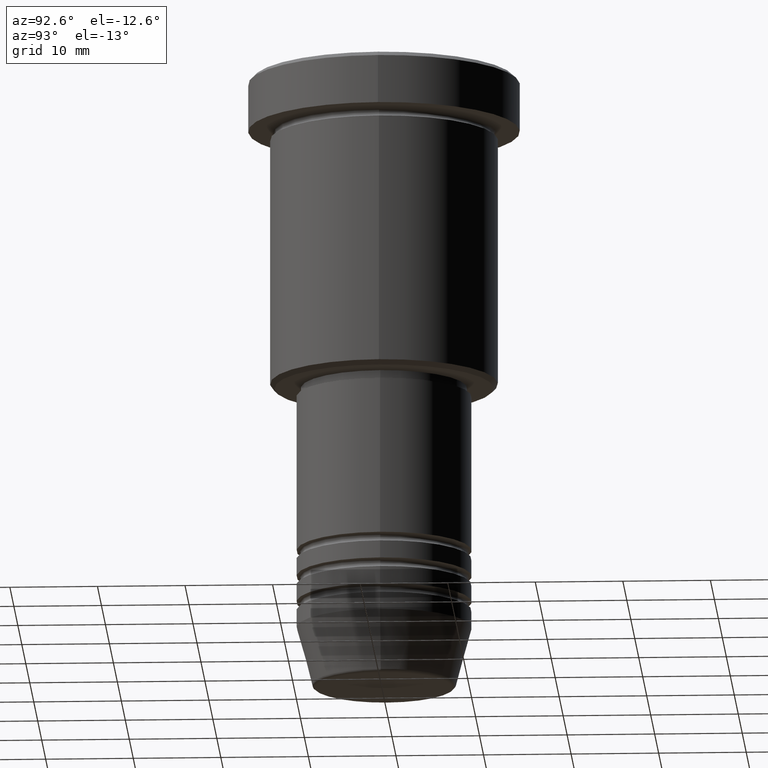
[diagram: clean part render]
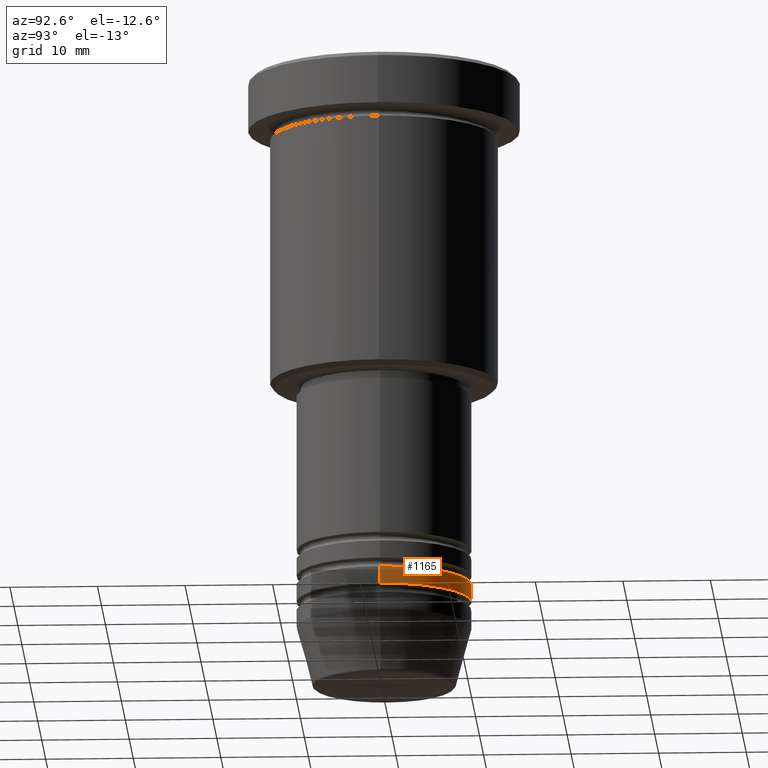
[diagram: same view with one face highlighted and labeled with its STEP entity id]
A machine part, auxiliary view. The second image highlights one B-rep face of the part: STEP entity #1165.
In plain terms, the highlighted cylindrical surface (partial cylindrical patch) has radius 10 mm, axis along (-0, -0, 1).
Its self-contained STEP definition (entity closure, byte-faithful):
#18 = VERTEX_POINT ( 'NONE', #954 ) ;
#190 = VERTEX_POINT ( 'NONE', #897 ) ;
#193 = EDGE_CURVE ( 'NONE', #18, #1034, #901, .T. ) ;
#199 = DIRECTION ( 'NONE',  ( 1.000000000000000000, 0.000000000000000000, 0.000000000000000000 ) ) ;
#235 = ORIENTED_EDGE ( 'NONE', *, *, #1092, .F. ) ;
#243 = DIRECTION ( 'NONE',  ( 1.000000000000000000, 0.000000000000000000, 0.000000000000000000 ) ) ;
#294 = CARTESIAN_POINT ( 'NONE',  ( -10.00000000000000000, 1.224646799147353256E-15, -60.99999999999998579 ) ) ;
#368 = VECTOR ( 'NONE', #877, 1000.000000000000000 ) ;
#404 = EDGE_CURVE ( 'NONE', #1019, #190, #454, .T. ) ;
#408 = CIRCLE ( 'NONE', #1177, 10.00000000000000000 ) ;
#414 = FACE_OUTER_BOUND ( 'NONE', #592, .T. ) ;
#423 = DIRECTION ( 'NONE',  ( 1.000000000000000000, 0.000000000000000000, 0.000000000000000000 ) ) ;
#454 = LINE ( 'NONE', #743, #560 ) ;
#482 = CIRCLE ( 'NONE', #1158, 10.00000000000000000 ) ;
#515 = CARTESIAN_POINT ( 'NONE',  ( 10.00000000000000000, 0.000000000000000000, 0.000000000000000000 ) ) ;
#560 = VECTOR ( 'NONE', #907, 1000.000000000000000 ) ;
#579 = AXIS2_PLACEMENT_3D ( 'NONE', #875, #785, #243 ) ;
#592 = EDGE_LOOP ( 'NONE', ( #1124, #878, #235, #1086 ) ) ;
#603 = CYLINDRICAL_SURFACE ( 'NONE', #579, 10.00000000000000000 ) ;
#711 = CARTESIAN_POINT ( 'NONE',  ( 0.000000000000000000, 0.000000000000000000, -58.99999999999998579 ) ) ;
#743 = CARTESIAN_POINT ( 'NONE',  ( -10.00000000000000000, 1.224646799147353256E-15, 0.000000000000000000 ) ) ;
#756 = CARTESIAN_POINT ( 'NONE',  ( 10.00000000000000000, 0.000000000000000000, -58.99999999999998579 ) ) ;
#785 = DIRECTION ( 'NONE',  ( -0.000000000000000000, -0.000000000000000000, 1.000000000000000000 ) ) ;
#860 = EDGE_CURVE ( 'NONE', #18, #1019, #482, .T. ) ;
#875 = CARTESIAN_POINT ( 'NONE',  ( 0.000000000000000000, 0.000000000000000000, 0.000000000000000000 ) ) ;
#877 = DIRECTION ( 'NONE',  ( -0.000000000000000000, -0.000000000000000000, 1.000000000000000000 ) ) ;
#878 = ORIENTED_EDGE ( 'NONE', *, *, #404, .T. ) ;
#897 = CARTESIAN_POINT ( 'NONE',  ( -10.00000000000000000, 1.224646799147353256E-15, -58.99999999999998579 ) ) ;
#901 = LINE ( 'NONE', #515, #368 ) ;
#907 = DIRECTION ( 'NONE',  ( -0.000000000000000000, -0.000000000000000000, 1.000000000000000000 ) ) ;
#954 = CARTESIAN_POINT ( 'NONE',  ( 10.00000000000000000, 0.000000000000000000, -60.99999999999998579 ) ) ;
#1019 = VERTEX_POINT ( 'NONE', #294 ) ;
#1020 = DIRECTION ( 'NONE',  ( -0.000000000000000000, -0.000000000000000000, 1.000000000000000000 ) ) ;
#1034 = VERTEX_POINT ( 'NONE', #756 ) ;
#1064 = DIRECTION ( 'NONE',  ( -0.000000000000000000, -0.000000000000000000, 1.000000000000000000 ) ) ;
#1086 = ORIENTED_EDGE ( 'NONE', *, *, #193, .F. ) ;
#1092 = EDGE_CURVE ( 'NONE', #1034, #190, #408, .T. ) ;
#1109 = CARTESIAN_POINT ( 'NONE',  ( 0.000000000000000000, 0.000000000000000000, -60.99999999999998579 ) ) ;
#1124 = ORIENTED_EDGE ( 'NONE', *, *, #860, .T. ) ;
#1158 = AXIS2_PLACEMENT_3D ( 'NONE', #1109, #1020, #199 ) ;
#1165 = ADVANCED_FACE ( 'NONE', ( #414 ), #603, .T. ) ;
#1177 = AXIS2_PLACEMENT_3D ( 'NONE', #711, #1064, #423 ) ;